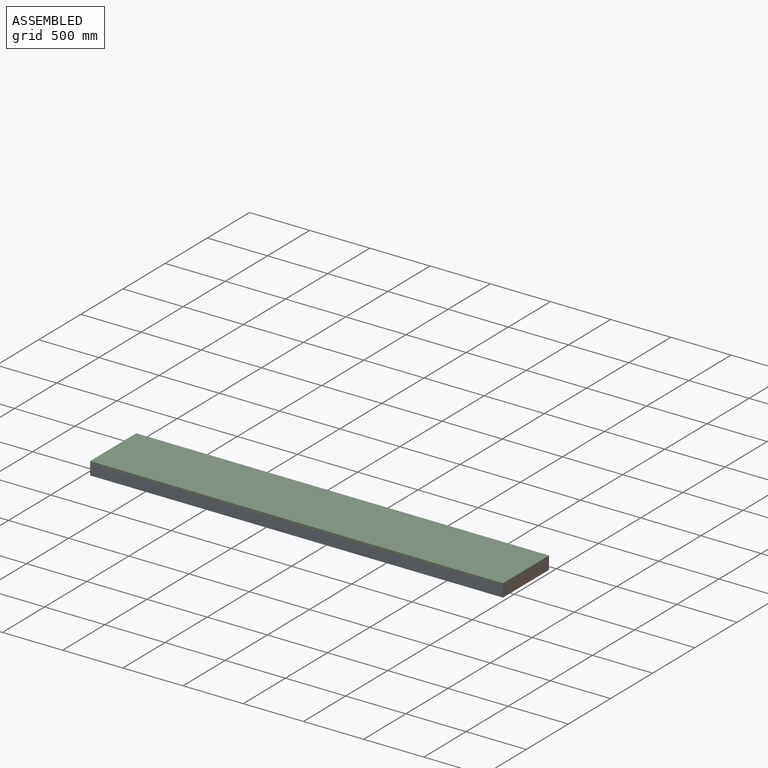
[diagram: assembled view]
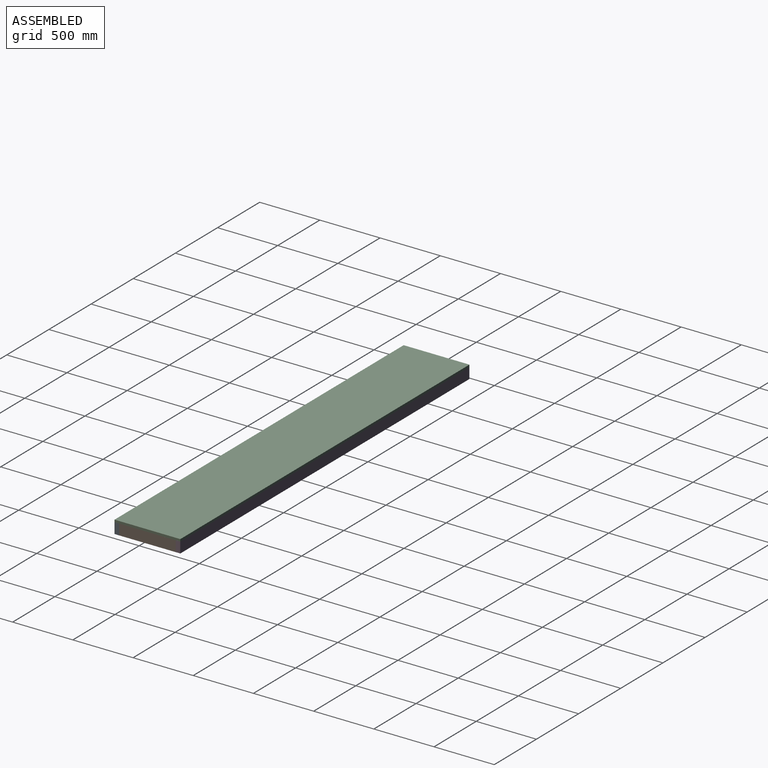
[diagram: assembled view, second angle]
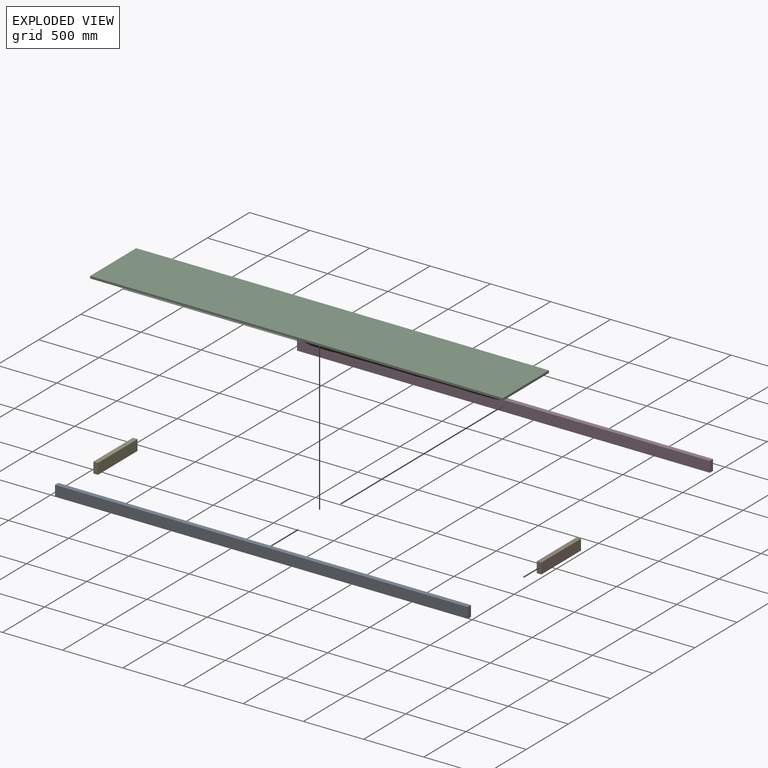
[diagram: exploded view]
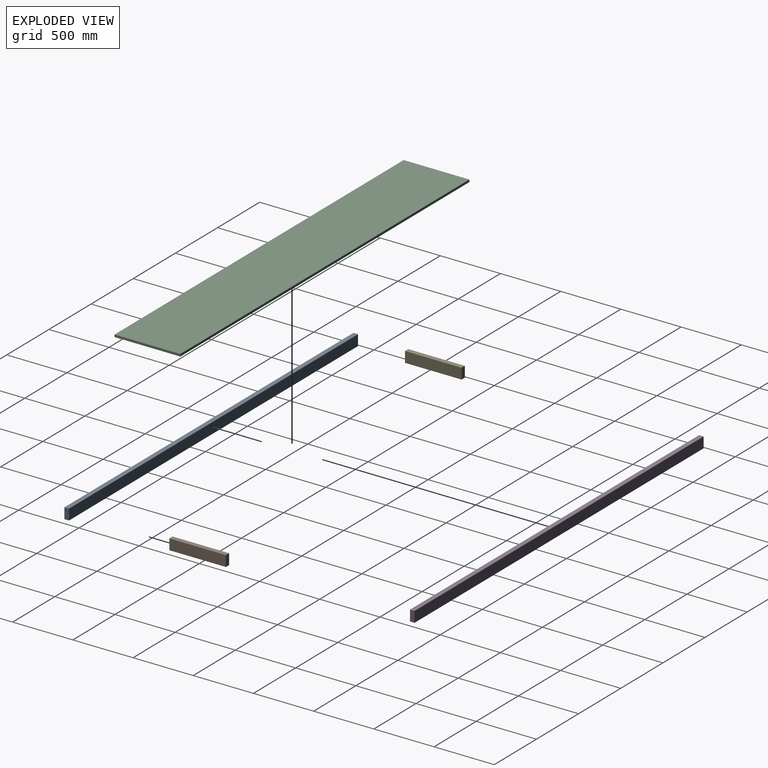
[diagram: exploded view, second angle]
ASSEMBLY  parts=5 mates=4
PART A: 6 faces, bbox 3429x38.1x88.9 mm
  f0: plane 3429x88.9mm, normal (0,1,0), area 304838.1mm2, adj f1,f3,f4,f5
  f1: plane 88.9x38.1mm, normal (-1,0,0), area 3387.1mm2, adj f0,f2,f4,f5
  f2: plane 3429x88.9mm, normal (0,-1,0), area 304838.1mm2, adj f1,f3,f4,f5
  f3: plane 88.9x38.1mm, normal (1,0,0), area 3387.1mm2, adj f0,f2,f4,f5
  f4: plane 3429x38.1mm, normal (0,0,-1), area 130644.9mm2, adj f0,f1,f2,f3
  f5: plane 3429x38.1mm, normal (0,0,1), area 130644.9mm2, adj f0,f1,f2,f3
PART B: 6 faces, bbox 38.1x469.9x88.9 mm
  f0: plane 469.9x88.9mm, normal (-1,0,0), area 41774.1mm2, adj f1,f3,f4,f5
  f1: plane 88.9x38.1mm, normal (0,-1,0), area 3387.1mm2, adj f0,f2,f4,f5
  f2: plane 469.9x88.9mm, normal (1,0,0), area 41774.1mm2, adj f1,f3,f4,f5
  f3: plane 88.9x38.1mm, normal (0,1,0), area 3387.1mm2, adj f0,f2,f4,f5
  f4: plane 469.9x38.1mm, normal (0,0,-1), area 17903.2mm2, adj f0,f1,f2,f3
  f5: plane 469.9x38.1mm, normal (0,0,1), area 17903.2mm2, adj f0,f1,f2,f3
PART C: 6 faces, bbox 3429x546.1x19.1 mm
  f0: plane 3429x19.05mm, normal (0,-1,0), area 65322.4mm2, adj f1,f3,f4,f5
  f1: plane 546.1x19.05mm, normal (1,0,0), area 10403.2mm2, adj f0,f2,f4,f5
  f2: plane 3429x19.05mm, normal (0,1,0), area 65322.4mm2, adj f1,f3,f4,f5
  f3: plane 546.1x19.05mm, normal (-1,0,0), area 10403.2mm2, adj f0,f2,f4,f5
  f4: plane 3429x546.1mm, normal (0,0,1), area 1872576.9mm2, adj f0,f1,f2,f3
  f5: plane 3429x546.1mm, normal (0,0,-1), area 1872576.9mm2, adj f0,f1,f2,f3
PART D: same geometry as A
PART E: same geometry as B
PLACE A t=(-3545.02,-1140.74,-181.25)mm
PLACE B t=(-154.12,-1140.74,-181.25)mm
PLACE C t=(-3545.02,-1140.74,-181.25)mm
PLACE D t=(-3545.02,-632.74,-181.25)mm
PLACE E t=(-3545.02,-1140.74,-181.25)mm
MATE fastened E.f1 <-> A.f0  axis (0,-1,0) through (4104.08,1857.64,-225.7)mm
MATE fastened B.f1 <-> A.f0  axis (0,-1,0) through (7533.08,1857.64,-225.7)mm
MATE fastened C.f5 <-> D.f5  axis (0,0,-1) through (7533.08,2365.64,-181.25)mm
MATE fastened D.f2 <-> B.f3  axis (0,-1,0) through (7533.08,2327.54,-225.7)mm
